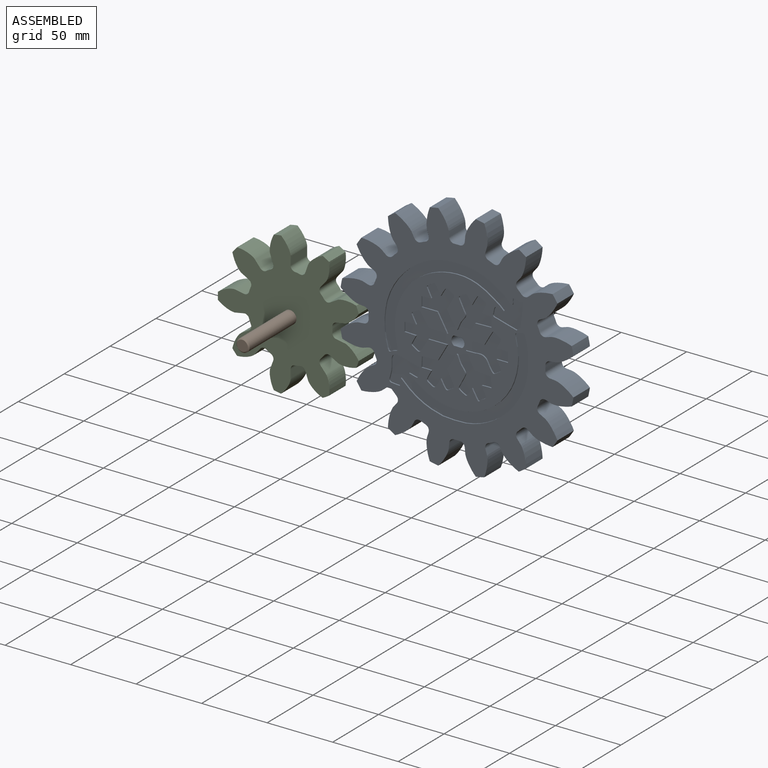
[diagram: assembled view]
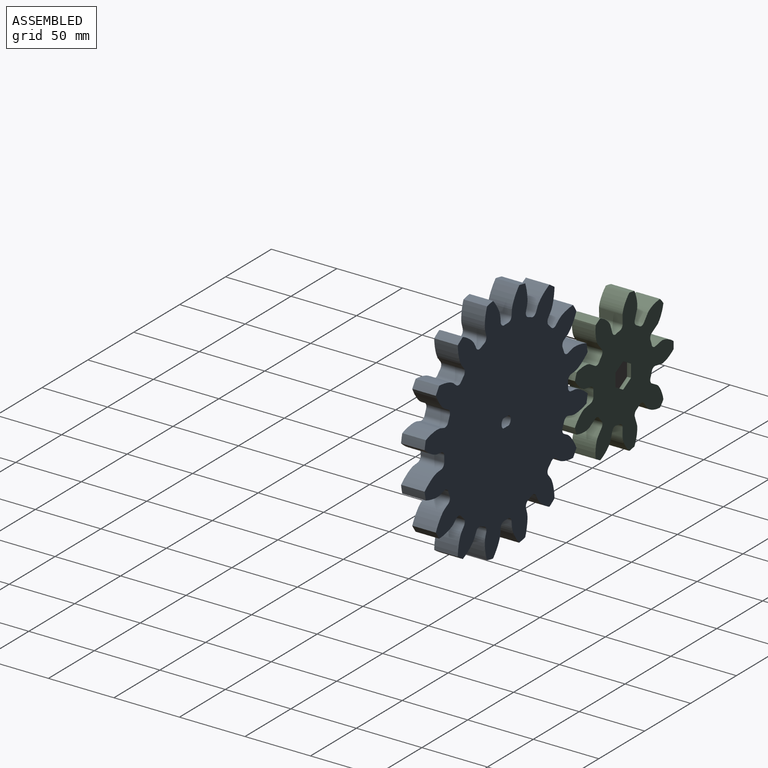
[diagram: assembled view, second angle]
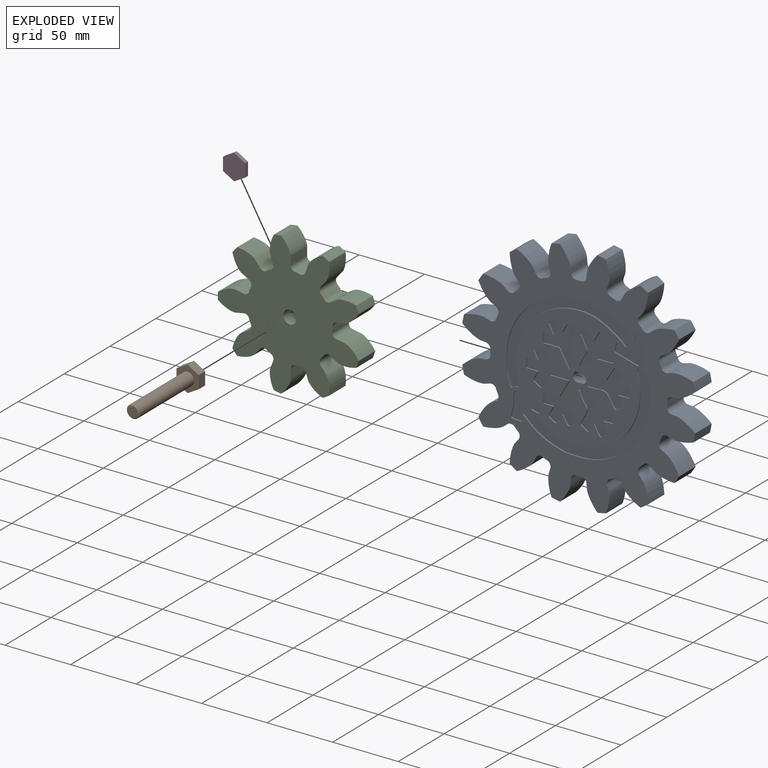
[diagram: exploded view]
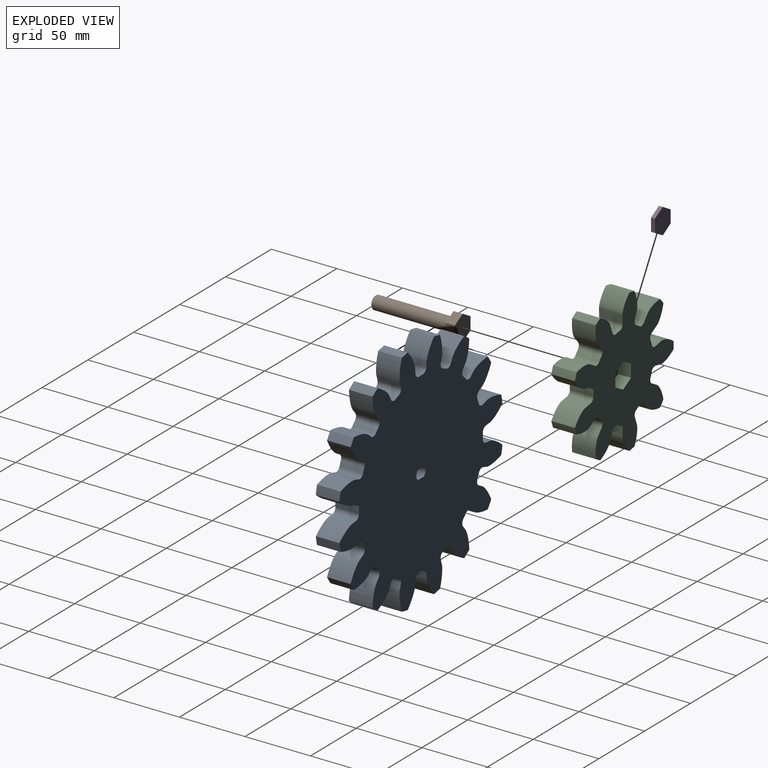
[diagram: exploded view, second angle]
ASSEMBLY  parts=4 mates=5
PART A: 189 faces, bbox 178x18x178 mm
  f0: plane 177.97x177.97mm, normal (0,-1,0), area 14107.5mm2, adj f6,f7,f8,f9,f10,f11,f12,f13
  f1: extruded ~17x7mm, area 140.3mm2, adj f2,f3,f5,f102
  f2: plane 17x6.24mm, normal (0,0,-1), area 106.1mm2, adj f1,f4,f5,f102
  f3: plane 17x6.24mm, normal (0,0,1), area 106.1mm2, adj f1,f4,f5,f102
  f4: extruded ~17x7mm, area 140.3mm2, adj f2,f3,f5,f102
  f5: plane 177.97x177.97mm, normal (0,1,0), area 19489mm2, adj f1,f2,f3,f4,f6,f7,f8,f9
  f6: extruded ~18x17.95mm, area 365.9mm2, adj f0,f5,f69,f70
  f7: cylinder r=67.5mm len=18mm, axis (0,1,0), area 74.3mm2, adj f0,f5,f70,f71
  f8: extruded ~18x17.95mm, area 365.9mm2, adj f0,f5,f9,f71
  f9: cylinder r=90mm len=18mm, axis (0,1,0), area 119.7mm2, adj f0,f5,f8,f10
  f10: extruded ~19.79x18mm, area 365.9mm2, adj f0,f5,f9,f72
  f11: cylinder r=67.5mm len=18mm, axis (0,1,0), area 74.3mm2, adj f0,f5,f72,f73
  f12: extruded ~18x14.61mm, area 365.9mm2, adj f0,f5,f13,f73
  f13: cylinder r=90mm len=18mm, axis (0,1,0), area 119.7mm2, adj f0,f5,f12,f14
  f14: extruded ~18.62x18mm, area 365.9mm2, adj f0,f5,f13,f74
  f15: cylinder r=67.5mm len=18mm, axis (0,1,0), area 74.3mm2, adj f0,f5,f74,f75
  f16: extruded ~18.62x18mm, area 365.9mm2, adj f0,f5,f17,f75
  f17: cylinder r=90mm len=18mm, axis (0,1,0), area 119.7mm2, adj f0,f5,f16,f18
  f18: extruded ~18x14.61mm, area 365.9mm2, adj f0,f5,f17,f76
  f19: cylinder r=67.5mm len=18mm, axis (0,1,0), area 74.3mm2, adj f0,f5,f76,f77
  f20: extruded ~19.79x18mm, area 365.9mm2, adj f0,f5,f21,f77
  f21: cylinder r=90mm len=18mm, axis (0,1,0), area 119.7mm2, adj f0,f5,f20,f22
  f22: extruded ~18x17.95mm, area 365.9mm2, adj f0,f5,f21,f78
  f23: cylinder r=67.5mm len=18mm, axis (0,1,0), area 74.3mm2, adj f0,f5,f78,f79
  f24: extruded ~18x17.95mm, area 365.9mm2, adj f0,f5,f25,f79
  f25: cylinder r=90mm len=18mm, axis (0,1,0), area 119.7mm2, adj f0,f5,f24,f26
  f26: extruded ~19.79x18mm, area 365.9mm2, adj f0,f5,f25,f80
  f27: cylinder r=67.5mm len=18mm, axis (0,1,0), area 74.3mm2, adj f0,f5,f80,f81
  f28: extruded ~18x14.61mm, area 365.9mm2, adj f0,f5,f29,f81
  f29: cylinder r=90mm len=18mm, axis (0,1,0), area 119.7mm2, adj f0,f5,f28,f30
  f30: extruded ~18.62x18mm, area 365.9mm2, adj f0,f5,f29,f82
  f31: cylinder r=67.5mm len=18mm, axis (0,1,0), area 74.3mm2, adj f0,f5,f82,f83
  f32: extruded ~18.62x18mm, area 365.9mm2, adj f0,f5,f33,f83
  f33: cylinder r=90mm len=18mm, axis (0,1,0), area 119.7mm2, adj f0,f5,f32,f34
  f34: extruded ~18x14.61mm, area 365.9mm2, adj f0,f5,f33,f84
  f35: cylinder r=67.5mm len=18mm, axis (0,1,0), area 74.3mm2, adj f0,f5,f84,f85
  f36: extruded ~19.79x18mm, area 365.9mm2, adj f0,f5,f37,f85
  f37: cylinder r=90mm len=18mm, axis (0,1,0), area 119.7mm2, adj f0,f5,f36,f38
  f38: extruded ~18x17.95mm, area 365.9mm2, adj f0,f5,f37,f86
  f39: cylinder r=67.5mm len=18mm, axis (0,1,0), area 74.3mm2, adj f0,f5,f86,f87
  f40: extruded ~18x17.95mm, area 365.9mm2, adj f0,f5,f41,f87
  f41: cylinder r=90mm len=18mm, axis (0,1,0), area 119.7mm2, adj f0,f5,f40,f42
  f42: extruded ~19.79x18mm, area 365.9mm2, adj f0,f5,f41,f88
  f43: cylinder r=67.5mm len=18mm, axis (0,1,0), area 74.3mm2, adj f0,f5,f88,f89
  f44: extruded ~18x14.61mm, area 365.9mm2, adj f0,f5,f45,f89
  f45: cylinder r=90mm len=18mm, axis (0,1,0), area 119.7mm2, adj f0,f5,f44,f46
  f46: extruded ~18.62x18mm, area 365.9mm2, adj f0,f5,f45,f90
  f47: cylinder r=67.5mm len=18mm, axis (0,1,0), area 74.3mm2, adj f0,f5,f90,f91
  f48: extruded ~18.62x18mm, area 365.9mm2, adj f0,f5,f49,f91
  f49: cylinder r=90mm len=18mm, axis (0,1,0), area 119.7mm2, adj f0,f5,f48,f50
  f50: extruded ~18x14.61mm, area 365.9mm2, adj f0,f5,f49,f92
  f51: cylinder r=67.5mm len=18mm, axis (0,1,0), area 74.3mm2, adj f0,f5,f92,f93
  f52: extruded ~19.79x18mm, area 365.9mm2, adj f0,f5,f53,f93
  f53: cylinder r=90mm len=18mm, axis (0,1,0), area 119.7mm2, adj f0,f5,f52,f54
  f54: extruded ~18x17.95mm, area 365.9mm2, adj f0,f5,f53,f94
  f55: cylinder r=67.5mm len=18mm, axis (0,1,0), area 74.3mm2, adj f0,f5,f94,f95
  f56: extruded ~18x17.95mm, area 365.9mm2, adj f0,f5,f57,f95
  f57: cylinder r=90mm len=18mm, axis (0,1,0), area 119.7mm2, adj f0,f5,f56,f58
  f58: extruded ~19.79x18mm, area 365.9mm2, adj f0,f5,f57,f96
  f59: cylinder r=67.5mm len=18mm, axis (0,1,0), area 74.3mm2, adj f0,f5,f96,f97
  f60: extruded ~18x14.61mm, area 365.9mm2, adj f0,f5,f61,f97
  f61: cylinder r=90mm len=18mm, axis (0,1,0), area 119.7mm2, adj f0,f5,f60,f62
  f62: extruded ~18.62x18mm, area 365.9mm2, adj f0,f5,f61,f98
  f63: cylinder r=67.5mm len=18mm, axis (0,1,0), area 74.3mm2, adj f0,f5,f98,f99
  f64: extruded ~18.62x18mm, area 365.9mm2, adj f0,f5,f65,f99
  f65: cylinder r=90mm len=18mm, axis (0,1,0), area 119.7mm2, adj f0,f5,f64,f66
  f66: extruded ~18x14.61mm, area 365.9mm2, adj f0,f5,f65,f100
  f67: cylinder r=67.5mm len=18mm, axis (0,1,0), area 74.3mm2, adj f0,f5,f100,f101
  f68: extruded ~19.79x18mm, area 365.9mm2, adj f0,f5,f69,f101
  f69: cylinder r=90mm len=18mm, axis (0,1,0), area 119.7mm2, adj f0,f5,f6,f68
  f70: cylinder r=3.74mm len=18mm, axis (0,1,0), area 102.4mm2, adj f0,f5,f6,f7
  f71: cylinder r=3.74mm len=18mm, axis (0,1,0), area 102.4mm2, adj f0,f5,f7,f8
  f72: cylinder r=3.74mm len=18mm, axis (0,1,0), area 102.4mm2, adj f0,f5,f10,f11
  f73: cylinder r=3.74mm len=18mm, axis (0,1,0), area 102.4mm2, adj f0,f5,f11,f12
  f74: cylinder r=3.74mm len=18mm, axis (0,1,0), area 102.4mm2, adj f0,f5,f14,f15
  f75: cylinder r=3.74mm len=18mm, axis (0,1,0), area 102.4mm2, adj f0,f5,f15,f16
  f76: cylinder r=3.74mm len=18mm, axis (0,1,0), area 102.4mm2, adj f0,f5,f18,f19
  f77: cylinder r=3.74mm len=18mm, axis (0,1,0), area 102.4mm2, adj f0,f5,f19,f20
  f78: cylinder r=3.74mm len=18mm, axis (0,1,0), area 102.4mm2, adj f0,f5,f22,f23
  f79: cylinder r=3.74mm len=18mm, axis (0,1,0), area 102.4mm2, adj f0,f5,f23,f24
  f80: cylinder r=3.74mm len=18mm, axis (0,1,0), area 102.4mm2, adj f0,f5,f26,f27
  f81: cylinder r=3.74mm len=18mm, axis (0,1,0), area 102.4mm2, adj f0,f5,f27,f28
  f82: cylinder r=3.74mm len=18mm, axis (0,1,0), area 102.4mm2, adj f0,f5,f30,f31
  f83: cylinder r=3.74mm len=18mm, axis (0,1,0), area 102.4mm2, adj f0,f5,f31,f32
  f84: cylinder r=3.74mm len=18mm, axis (0,1,0), area 102.4mm2, adj f0,f5,f34,f35
  f85: cylinder r=3.74mm len=18mm, axis (0,1,0), area 102.4mm2, adj f0,f5,f35,f36
  f86: cylinder r=3.74mm len=18mm, axis (0,1,0), area 102.4mm2, adj f0,f5,f38,f39
  f87: cylinder r=3.74mm len=18mm, axis (0,1,0), area 102.4mm2, adj f0,f5,f39,f40
  f88: cylinder r=3.74mm len=18mm, axis (0,1,0), area 102.4mm2, adj f0,f5,f42,f43
  f89: cylinder r=3.74mm len=18mm, axis (0,1,0), area 102.4mm2, adj f0,f5,f43,f44
  f90: cylinder r=3.74mm len=18mm, axis (0,1,0), area 102.4mm2, adj f0,f5,f46,f47
  f91: cylinder r=3.74mm len=18mm, axis (0,1,0), area 102.4mm2, adj f0,f5,f47,f48
  f92: cylinder r=3.74mm len=18mm, axis (0,1,0), area 102.4mm2, adj f0,f5,f50,f51
  f93: cylinder r=3.74mm len=18mm, axis (0,1,0), area 102.4mm2, adj f0,f5,f51,f52
  f94: cylinder r=3.74mm len=18mm, axis (0,1,0), area 102.4mm2, adj f0,f5,f54,f55
  f95: cylinder r=3.74mm len=18mm, axis (0,1,0), area 102.4mm2, adj f0,f5,f55,f56
  f96: cylinder r=3.74mm len=18mm, axis (0,1,0), area 102.4mm2, adj f0,f5,f58,f59
  f97: cylinder r=3.74mm len=18mm, axis (0,1,0), area 102.4mm2, adj f0,f5,f59,f60
  f98: cylinder r=3.74mm len=18mm, axis (0,1,0), area 102.4mm2, adj f0,f5,f62,f63
  f99: cylinder r=3.74mm len=18mm, axis (0,1,0), area 102.4mm2, adj f0,f5,f63,f64
  f100: cylinder r=3.74mm len=18mm, axis (0,1,0), area 102.4mm2, adj f0,f5,f66,f67
  f101: cylinder r=3.74mm len=18mm, axis (0,1,0), area 102.4mm2, adj f0,f5,f67,f68
  f102: plane 79.05x72.79mm, normal (0,-1,0), area 2604.2mm2, adj f1,f2,f3,f4,f103,f104,f105,f106
  f103: extruded ~11.64x8.82mm, area 23.7mm2, adj f0,f102,f104,f169
  f104: plane 3.79x1mm, normal (0,0,1), area 3.8mm2, adj f0,f102,f103,f105
  f105: plane 3.91x1mm, normal (-1,0,-0.04), area 3.9mm2, adj f0,f102,f104,f106
  f106: plane 3.91x1mm, normal (-1,0,-0.04), area 3.9mm2, adj f0,f102,f105,f107
  f107: plane 12.49x1mm, normal (-0.05,0,-1), area 12.5mm2, adj f0,f102,f106,f108
  f108: plane 6.08x3.44mm, normal (-0.87,0,-0.49), area 7mm2, adj f0,f102,f107,f109
  f109: plane 6.08x3.44mm, normal (-0.87,0,-0.49), area 7mm2, adj f0,f102,f108,f110
  f110: plane 7.07x1mm, normal (-0.02,0,1), area 7.1mm2, adj f0,f102,f109,f111
  f111: extruded ~20.06x10.6mm, area 30.7mm2, adj f0,f102,f110,f112
  f112: plane 3.11x1.78mm, normal (-0.87,0,-0.5), area 3.6mm2, adj f0,f102,f111,f113
  f113: plane 8.77x1mm, normal (0,0,1), area 8.8mm2, adj f0,f102,f112,f114
  f114: plane 7.53x1mm, normal (-1,0,0), area 7.5mm2, adj f0,f102,f113,f115
  f115: plane 8.8x1mm, normal (0,0,-1), area 8.8mm2, adj f0,f102,f114,f116
  f116: plane 3.25x1.83mm, normal (-0.87,0,0.49), area 3.7mm2, adj f0,f102,f115,f117
  f117: extruded ~9.65x7.55mm, area 18.2mm2, adj f0,f102,f116,f118
  f118: plane 5.2x2.98mm, normal (0.87,0,-0.5), area 6mm2, adj f0,f102,f117,f119
  f119: plane 7.2x1mm, normal (0,0,-1), area 7.2mm2, adj f0,f102,f118,f120
  f120: extruded ~7.22x6.74mm, area 15mm2, adj f0,f102,f119,f121
  f121: plane 6.3x3.66mm, normal (-0.86,0,0.5), area 7.3mm2, adj f0,f102,f120,f122
  f122: plane 12.37x1mm, normal (-0.03,0,1), area 12.4mm2, adj f0,f102,f121,f123
  f123: plane 7.49x1mm, normal (-1,0,0), area 7.5mm2, adj f0,f102,f122,f124
  f124: plane 3.76x1mm, normal (0,0,-1), area 3.8mm2, adj f0,f102,f123,f125
  f125: extruded ~11.41x9.07mm, area 23.8mm2, adj f0,f102,f124,f126
  f126: plane 3.44x1.89mm, normal (0.88,0,-0.48), area 3.9mm2, adj f0,f102,f125,f127
  f127: plane 2.92x1.69mm, normal (-0.87,0,-0.5), area 3.4mm2, adj f0,f102,f126,f128
  f128: extruded ~26.3x14.07mm, area 45.3mm2, adj f0,f102,f127,f129
  f129: plane 6.16x3.55mm, normal (-0.87,0,-0.5), area 7.1mm2, adj f0,f102,f128,f130
  f130: plane 4.79x2.83mm, normal (-0.86,0,0.51), area 5.6mm2, adj f0,f102,f129,f131
  f131: extruded ~9.55x8.41mm, area 17.8mm2, adj f0,f102,f130,f132
  f132: plane 3.17x1.76mm, normal (0.87,0,-0.48), area 3.6mm2, adj f0,f102,f131,f133
  f133: plane 3.75x2.16mm, normal (-0.87,0,-0.5), area 4.3mm2, adj f0,f102,f132,f134
  f134: extruded ~11.64x8.79mm, area 23.6mm2, adj f0,f102,f133,f135
  f135: plane 3.76x1mm, normal (0,0,-1), area 3.8mm2, adj f0,f102,f134,f136
  f136: plane 7.53x1mm, normal (1,0,0), area 7.5mm2, adj f0,f102,f135,f137
  f137: plane 12.09x1mm, normal (0,0,1), area 12.1mm2, adj f0,f102,f136,f138
  f138: plane 5.36x3.14mm, normal (0.86,0,0.51), area 6.2mm2, adj f0,f102,f137,f139
  f139: extruded ~6.66x3.82mm, area 7.7mm2, adj f0,f102,f138,f140
  f140: plane 1.3x1mm, normal (0.89,0,0.46), area 1.5mm2, adj f0,f102,f139,f141
  f141: plane 14.47x1mm, normal (0,0,-1), area 14.5mm2, adj f0,f102,f140,f142
  f142: plane 5.21x3.04mm, normal (-0.86,0,-0.5), area 6mm2, adj f0,f102,f141,f143
  f143: extruded ~9.73x7.36mm, area 17.9mm2, adj f0,f102,f142,f144
  f144: plane 3.06x1.73mm, normal (0.87,0,0.49), area 3.5mm2, adj f0,f102,f143,f145
  f145: plane 4.48x1mm, normal (0.04,0,-1), area 4.5mm2, adj f0,f102,f144,f146
  f146: plane 4.48x1mm, normal (0.04,0,-1), area 4.5mm2, adj f0,f102,f145,f147
  f147: plane 6.95x1mm, normal (1,0,0), area 6.9mm2, adj f0,f102,f146,f148
  f148: plane 4.48x1mm, normal (0.04,0,1), area 4.5mm2, adj f0,f102,f147,f149
  f149: plane 4.48x1mm, normal (0.04,0,1), area 4.5mm2, adj f0,f102,f148,f150
  f150: plane 3.06x1.73mm, normal (0.87,0,-0.49), area 3.5mm2, adj f0,f102,f149,f151
  f151: extruded ~9.68x7.34mm, area 17.8mm2, adj f0,f102,f150,f152
  f152: plane 5.21x3.05mm, normal (-0.86,0,0.5), area 6mm2, adj f0,f102,f151,f153
  f153: plane 14.55x1mm, normal (0,0,1), area 14.6mm2, adj f0,f102,f152,f154
  f154: plane 2.46x1.39mm, normal (0.87,0,-0.49), area 2.8mm2, adj f0,f102,f153,f155
  f155: extruded ~6.35x3.64mm, area 7.3mm2, adj f0,f102,f154,f156
  f156: plane 3.89x2.25mm, normal (0.87,0,-0.5), area 4.5mm2, adj f0,f102,f155,f157
  f157: plane 6.11x1mm, normal (0.03,0,-1), area 6.1mm2, adj f0,f102,f156,f158
  f158: plane 6.11x1mm, normal (0.03,0,-1), area 6.1mm2, adj f0,f102,f157,f159
  f159: plane 7.82x1mm, normal (1,0,-0.04), area 7.8mm2, adj f0,f102,f158,f160
  f160: plane 3.79x1mm, normal (0,0,1), area 3.8mm2, adj f0,f102,f159,f161
  f161: extruded ~11.04x8.96mm, area 23.4mm2, adj f0,f102,f160,f162
  f162: plane 3.56x1.96mm, normal (-0.88,0,0.48), area 4.1mm2, adj f0,f102,f161,f163
  f163: plane 3.26x1.8mm, normal (0.88,0,0.48), area 3.7mm2, adj f0,f102,f162,f164
  f164: extruded ~9.57x8.44mm, area 17.9mm2, adj f0,f102,f163,f165
  f165: plane 4.79x2.82mm, normal (-0.86,0,-0.51), area 5.6mm2, adj f0,f102,f164,f166
  f166: plane 6.15x3.54mm, normal (-0.87,0,0.5), area 7.1mm2, adj f0,f102,f165,f167
  f167: extruded ~26.3x14.06mm, area 45.5mm2, adj f0,f102,f166,f168
  f168: plane 2.93x1.69mm, normal (-0.87,0,0.5), area 3.4mm2, adj f0,f102,f167,f169
  f169: plane 3.76x2.16mm, normal (0.87,0,0.5), area 4.3mm2, adj f0,f102,f103,f168
  f170: extruded ~89.38x73.91mm, area 254.2mm2, adj f0,f171,f176,f177
  f171: plane 1.47x1.36mm, normal (-0.73,0,-0.68), area 2mm2, adj f0,f170,f172,f177
  f172: plane 2.99x1mm, normal (0.28,0,0.96), area 3.1mm2, adj f0,f171,f173,f177
  f173: extruded ~23.06x20.8mm, area 55.8mm2, adj f0,f172,f174,f177
  f174: plane 3.46x1mm, normal (0.05,0,1), area 3.5mm2, adj f0,f173,f175,f177
  f175: plane 2.75x1mm, normal (-1,0,0.06), area 2.8mm2, adj f0,f174,f176,f177
  f176: extruded ~32.46x17.35mm, area 40mm2, adj f0,f170,f175,f177
  f177: plane 106.31x74.77mm, normal (0,-1,0), area 1370mm2, adj f170,f171,f172,f173,f174,f175,f176
  f178: extruded ~84.93x66.26mm, area 136.3mm2, adj f0,f179,f187,f188
  f179: plane 3.7x3.39mm, normal (0.68,0,0.74), area 5mm2, adj f0,f178,f180,f188
  f180: plane 3.11x1mm, normal (-0.28,0,-0.96), area 3.2mm2, adj f0,f179,f181,f188
  f181: extruded ~10x9.51mm, area 20.5mm2, adj f0,f180,f182,f188
  f182: plane 8.37x2.19mm, normal (0.25,0,0.97), area 8.7mm2, adj f0,f181,f183,f188
  f183: plane 1.56x1.16mm, normal (-0.6,0,0.8), area 1.9mm2, adj f0,f182,f184,f188
  f184: extruded ~20.08x4.08mm, area 24.2mm2, adj f0,f183,f185,f188
  f185: plane 3.37x1mm, normal (-0.02,0,-1), area 3.4mm2, adj f0,f184,f186,f188
  f186: plane 2.03x1mm, normal (1,0,-0.08), area 2mm2, adj f0,f185,f187,f188
  f187: extruded ~97.87x72.47mm, area 155mm2, adj f0,f178,f186,f188
  f188: plane 105.67x74.91mm, normal (0,-1,0), area 1425mm2, adj f178,f179,f180,f181,f182,f183,f184,f185
PART B: 11 faces, bbox 66.8x19.6x17 mm
  f0: plane 8.5x7mm, normal (0,0.87,0.5), area 68.7mm2, adj f1,f5,f6,f7
  f1: plane 8.5x7mm, normal (0,0.87,-0.5), area 68.7mm2, adj f0,f2,f6,f7
  f2: plane 9.82x7mm, normal (0,0,-1), area 68.7mm2, adj f1,f3,f6,f7
  f3: plane 8.5x7mm, normal (0,-0.87,-0.5), area 68.7mm2, adj f2,f4,f6,f7
  f4: plane 8.5x7mm, normal (0,-0.87,0.5), area 68.7mm2, adj f3,f5,f6,f7
  f5: plane 9.82x7mm, normal (0,0,1), area 68.7mm2, adj f0,f4,f6,f7
  f6: plane 19.63x17mm, normal (1,0,0), area 171.7mm2, adj f0,f1,f2,f3,f4,f5,f8
  f7: plane 19.63x17mm, normal (-1,0,0), area 250.3mm2, adj f0,f1,f2,f3,f4,f5
  f8: cylinder r=5mm len=58.97mm, axis (-1,0,0), area 1852.7mm2, adj f6,f10
  f9: plane 8.34x8.34mm, normal (1,0,0), area 54.7mm2, adj f10
  f10: cone r=4.17mm half-angle=45deg, axis (-1,0,0), area 33.7mm2, adj f8,f9
PART C: 64 faces, bbox 108x18x109.7 mm
  f0: extruded ~18x17.25mm, area 376.9mm2, adj f35,f36,f37,f38
  f1: cylinder r=32.5mm len=18mm, axis (0,1,0), area 74.2mm2, adj f36,f37,f38,f39
  f2: extruded ~18x17.25mm, area 376.9mm2, adj f3,f36,f37,f39
  f3: cylinder r=55mm len=18mm, axis (0,1,0), area 101.8mm2, adj f2,f4,f36,f37
  f4: extruded ~19.93x18mm, area 376.9mm2, adj f3,f36,f37,f40
  f5: cylinder r=32.5mm len=18mm, axis (0,1,0), area 74.2mm2, adj f36,f37,f40,f41
  f6: extruded ~19.09x18mm, area 376.9mm2, adj f7,f36,f37,f41
  f7: cylinder r=55mm len=18mm, axis (0,1,0), area 101.8mm2, adj f6,f8,f36,f37
  f8: extruded ~18x15.17mm, area 376.9mm2, adj f7,f36,f37,f42
  f9: cylinder r=32.5mm len=18mm, axis (0,1,0), area 74.2mm2, adj f36,f37,f42,f43
  f10: extruded ~18.8x18mm, area 376.9mm2, adj f11,f36,f37,f43
  f11: cylinder r=55mm len=18mm, axis (0,1,0), area 101.8mm2, adj f10,f12,f36,f37
  f12: extruded ~20.16x18mm, area 376.9mm2, adj f11,f36,f37,f44
  f13: cylinder r=32.5mm len=18mm, axis (0,1,0), area 74.2mm2, adj f36,f37,f44,f45
  f14: extruded ~18x17.68mm, area 376.9mm2, adj f15,f36,f37,f45
  f15: cylinder r=55mm len=18mm, axis (0,1,0), area 101.8mm2, adj f14,f16,f36,f37
  f16: extruded ~18x15.72mm, area 376.9mm2, adj f15,f36,f37,f46
  f17: cylinder r=32.5mm len=18mm, axis (0,1,0), area 74.2mm2, adj f36,f37,f46,f47
  f18: extruded ~19.78x18mm, area 376.9mm2, adj f19,f36,f37,f47
  f19: cylinder r=55mm len=18mm, axis (0,1,0), area 101.8mm2, adj f18,f20,f36,f37
  f20: extruded ~19.78x18mm, area 376.9mm2, adj f19,f36,f37,f48
  f21: cylinder r=32.5mm len=18mm, axis (0,1,0), area 74.2mm2, adj f36,f37,f48,f49
  f22: extruded ~18x15.72mm, area 376.9mm2, adj f23,f36,f37,f49
  f23: cylinder r=55mm len=18mm, axis (0,1,0), area 101.8mm2, adj f22,f24,f36,f37
  f24: extruded ~18x17.68mm, area 376.9mm2, adj f23,f36,f37,f50
  f25: cylinder r=32.5mm len=18mm, axis (0,1,0), area 74.2mm2, adj f36,f37,f50,f51
  f26: extruded ~20.16x18mm, area 376.9mm2, adj f27,f36,f37,f51
  f27: cylinder r=55mm len=18mm, axis (0,1,0), area 101.8mm2, adj f26,f28,f36,f37
  f28: extruded ~18.8x18mm, area 376.9mm2, adj f27,f36,f37,f52
  f29: cylinder r=32.5mm len=18mm, axis (0,1,0), area 74.2mm2, adj f36,f37,f52,f53
  f30: extruded ~18x15.17mm, area 376.9mm2, adj f31,f36,f37,f53
  f31: cylinder r=55mm len=18mm, axis (0,1,0), area 101.8mm2, adj f30,f32,f36,f37
  f32: extruded ~19.09x18mm, area 376.9mm2, adj f31,f36,f37,f54
  f33: cylinder r=32.5mm len=18mm, axis (0,1,0), area 74.2mm2, adj f36,f37,f54,f55
  f34: extruded ~19.93x18mm, area 376.9mm2, adj f35,f36,f37,f55
  f35: cylinder r=55mm len=18mm, axis (0,1,0), area 101.8mm2, adj f0,f34,f36,f37
  f36: plane 109.65x108mm, normal (0,-1,0), area 5968.4mm2, adj f0,f1,f2,f3,f4,f5,f6,f7
  f37: plane 109.65x108mm, normal (0,1,0), area 5796.6mm2, adj f0,f1,f2,f3,f4,f5,f6,f7
  f38: cylinder r=3.44mm len=18mm, axis (0,1,0), area 91.5mm2, adj f0,f1,f36,f37
  f39: cylinder r=3.44mm len=18mm, axis (0,1,0), area 91.5mm2, adj f1,f2,f36,f37
  f40: cylinder r=3.44mm len=18mm, axis (0,1,0), area 91.5mm2, adj f4,f5,f36,f37
  f41: cylinder r=3.44mm len=18mm, axis (0,1,0), area 91.5mm2, adj f5,f6,f36,f37
  f42: cylinder r=3.44mm len=18mm, axis (0,1,0), area 91.5mm2, adj f8,f9,f36,f37
  f43: cylinder r=3.44mm len=18mm, axis (0,1,0), area 91.5mm2, adj f9,f10,f36,f37
  f44: cylinder r=3.44mm len=18mm, axis (0,1,0), area 91.5mm2, adj f12,f13,f36,f37
  f45: cylinder r=3.44mm len=18mm, axis (0,1,0), area 91.5mm2, adj f13,f14,f36,f37
  f46: cylinder r=3.44mm len=18mm, axis (0,1,0), area 91.5mm2, adj f16,f17,f36,f37
  f47: cylinder r=3.44mm len=18mm, axis (0,1,0), area 91.5mm2, adj f17,f18,f36,f37
  f48: cylinder r=3.44mm len=18mm, axis (0,1,0), area 91.5mm2, adj f20,f21,f36,f37
  f49: cylinder r=3.44mm len=18mm, axis (0,1,0), area 91.5mm2, adj f21,f22,f36,f37
  f50: cylinder r=3.44mm len=18mm, axis (0,1,0), area 91.5mm2, adj f24,f25,f36,f37
  f51: cylinder r=3.44mm len=18mm, axis (0,1,0), area 91.5mm2, adj f25,f26,f36,f37
  f52: cylinder r=3.44mm len=18mm, axis (0,1,0), area 91.5mm2, adj f28,f29,f36,f37
  f53: cylinder r=3.44mm len=18mm, axis (0,1,0), area 91.5mm2, adj f29,f30,f36,f37
  f54: cylinder r=3.44mm len=18mm, axis (0,1,0), area 91.5mm2, adj f32,f33,f36,f37
  f55: cylinder r=3.44mm len=18mm, axis (0,1,0), area 91.5mm2, adj f33,f34,f36,f37
  f56: plane 10x8.5mm, normal (-0.5,0,-0.87), area 98.1mm2, adj f37,f57,f61,f62
  f57: plane 10x8.5mm, normal (0.5,0,-0.87), area 98.1mm2, adj f37,f56,f58,f62
  f58: plane 10x9.82mm, normal (1,0,0), area 98.1mm2, adj f37,f57,f59,f62
  f59: plane 10x8.5mm, normal (0.5,0,0.87), area 98.1mm2, adj f37,f58,f60,f62
  f60: plane 10x8.5mm, normal (-0.5,0,0.87), area 98.1mm2, adj f37,f59,f61,f62
  f61: plane 10x9.82mm, normal (-1,0,0), area 98.1mm2, adj f37,f56,f60,f62
  f62: plane 19.63x17mm, normal (0,1,0), area 171.7mm2, adj f56,f57,f58,f59,f60,f61,f63
  f63: cylinder r=5mm len=10mm, axis (0,1,0), area 251.3mm2, adj f36,f62
PART D: 8 faces, bbox 19.6x3x17 mm
  f0: plane 8.5x4.91mm, normal (-0.87,0,0.5), area 29.4mm2, adj f1,f5,f6,f7
  f1: plane 8.5x4.91mm, normal (-0.87,0,-0.5), area 29.4mm2, adj f0,f2,f6,f7
  f2: plane 9.82x3mm, normal (0,0,-1), area 29.4mm2, adj f1,f3,f6,f7
  f3: plane 8.5x4.91mm, normal (0.87,0,-0.5), area 29.4mm2, adj f2,f4,f6,f7
  f4: plane 8.5x4.91mm, normal (0.87,0,0.5), area 29.4mm2, adj f3,f5,f6,f7
  f5: plane 9.82x3mm, normal (0,0,1), area 29.4mm2, adj f0,f4,f6,f7
  f6: plane 19.63x17mm, normal (0,-1,0), area 250.3mm2, adj f0,f1,f2,f3,f4,f5
  f7: plane 19.63x17mm, normal (0,1,0), area 250.3mm2, adj f0,f1,f2,f3,f4,f5
PLACE A t=(39.88,-17.8,11.83)mm
PLACE B rot(axis=(-0.58,0.58,-0.58),120deg) t=(-87.66,-20.97,-4.93)mm
PLACE C rot(axis=(-0.05,1,0),0deg) t=(-87.66,-17.8,-4.93)mm
PLACE D rot(axis=(0,1,0),30deg) t=(-87.66,-22.43,-4.93)mm
MATE planar C.f60 <-> D.f3  axis (-0.5,0,0.87) through (-83.41,-22.8,-12.29)mm
MATE planar D.f4 <-> C.f61  axis (1,0,0) through (-79.16,-23.93,-4.93)mm
MATE planar C.f29 <-> A.f0  axis (0,-1,0) through (-87.66,-35.8,-4.93)mm
MATE planar B.f6 <-> C.f3  axis (0,-1,0) through (-83.41,-27.8,2.44)mm
MATE slider C.f3 <-> B.f8  axis (0,-1,0) through (-87.66,-35.8,-4.93)mm
